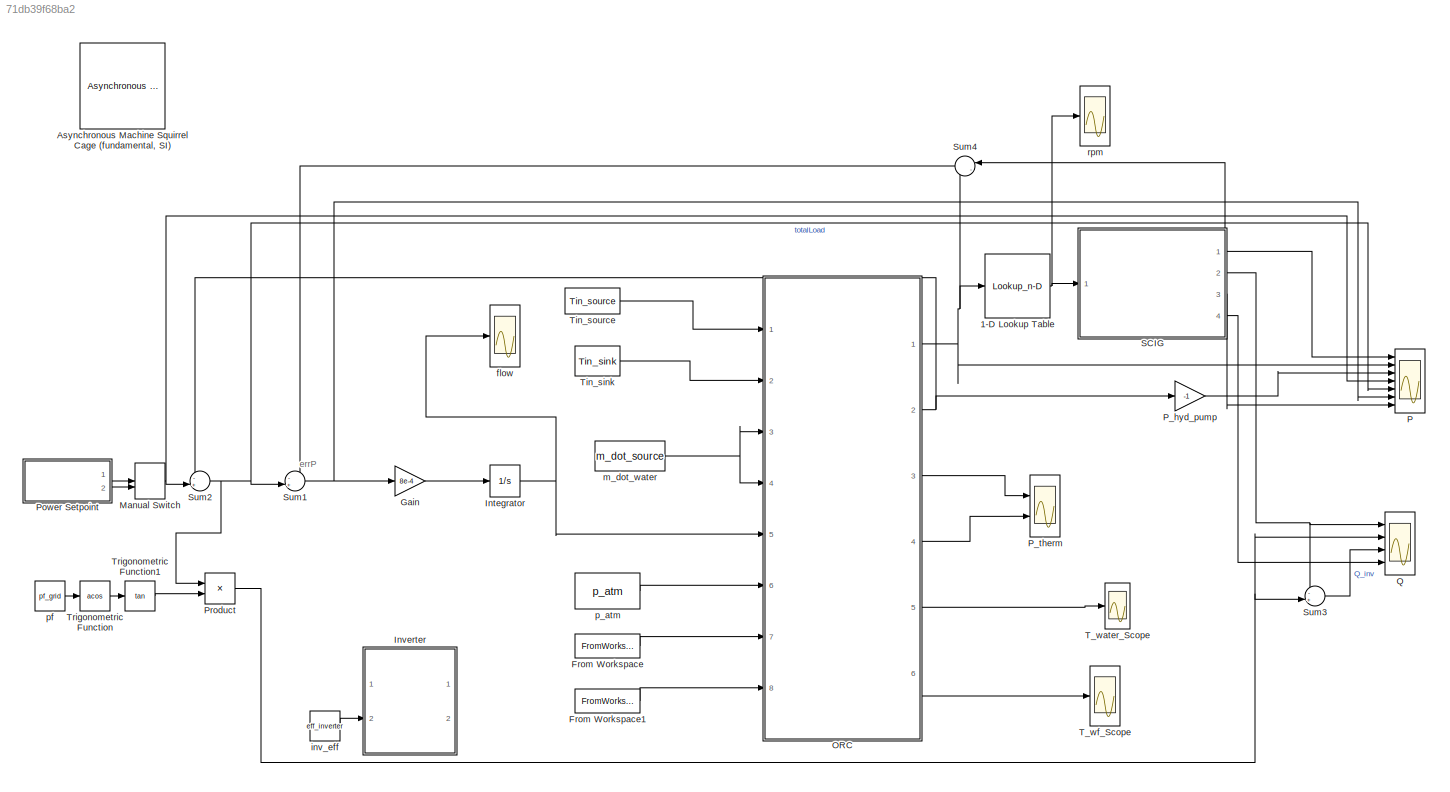
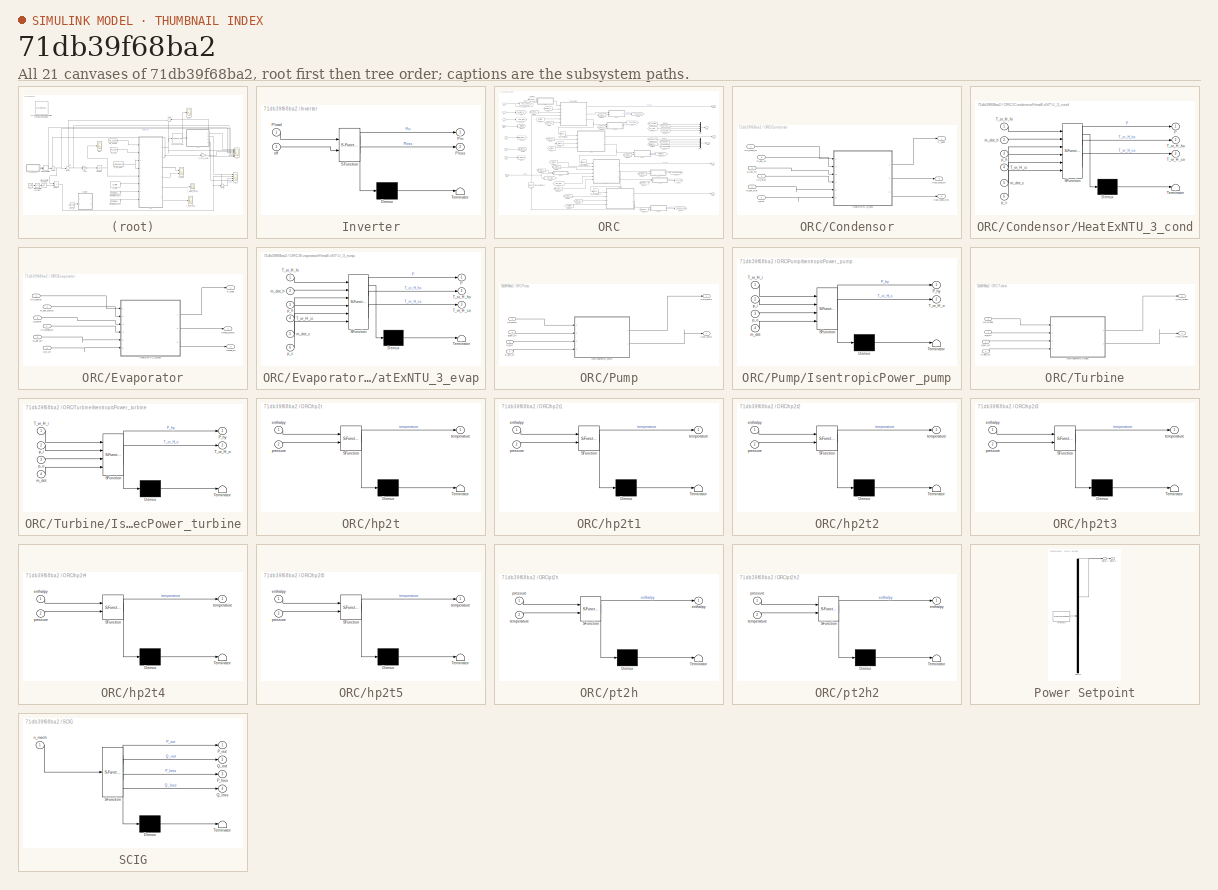
[diagram: thumbnail index - all 21 canvases of the model, root first then tree order]
MODEL slx_71db39f68ba2
KIND model
CONFIG AbsTol = auto
CONFIG EnableMultiTasking = off
CONFIG FixedStep = .1
CONFIG MaxStep = auto
CONFIG MinStep = auto
CONFIG RelTol = 1e-4
CONFIG SampleTimeConstraint = Unconstrained
CONFIG Solver = FixedStepAuto
CONFIG SolverName = FixedStepAuto
CONFIG StartTime = 0.0
CONFIG StopTime = 9
BLOCK [Lookup_n-D] 1-D Lookup Table
  BeginIndexSearchUsingPreviousIndexResult = on
  BreakpointsForDimension1 = P_spd_power
  DiagnosticForOutOfRangeInput = Error
  ExtrapMethod = Clip
  InternalRulePriority = Speed
  NumberOfTableDimensions = 1
  Ports = [1, 1]
  RndMeth = Simplest
  Table = P_spd_speed
BLOCK [Reference] Asynchronous Machine Squirrel Cage (fundamental, SI)  REF=pe_lib/Machines/Asynchronous
Machine
(Squirrel Cage)/Asynchronous Machine
Squirrel Cage
(fundamental, SI)
  Commented = on
  Ports = [0, 0, 0, 0, 0, 2, 3]
  SourceBlock = pe_lib/Machines/Asynchronous\nMachine\n(Squirrel Cage)/Asynchronous Machine\nSquirrel Cage\n(fundamental, SI)
  SourceProductBaseCode = PS
  SourceProductName = Simscape Power Systems
  SourceType = Asynchronous Machine\nSquirrel Cage\n(fundamental, SI)
BLOCK [FromWorkspace] From Workspace
  SampleTime = 0
  VariableName = p_hi
  ZeroCross = on
BLOCK [FromWorkspace] From Workspace1
  SampleTime = 0
  VariableName = p_low
  ZeroCross = on
BLOCK [Gain] Gain
  Gain = 8e-4
  OutDataTypeStr = Inherit: Inherit via internal rule
  ParamDataTypeStr = Inherit: Inherit via internal rule
  SaturateOnIntegerOverflow = off
BLOCK [Integrator] Integrator
  InitialCondition = m_dot_wf_init
  LimitOutput = on
  LowerSaturationLimit = 0
  Ports = [1, 1]
  UpperSaturationLimit = m_dot_wf_max
BLOCK [SubSystem] Inverter
  Commented = on
  ErrorFcn = Stateflow.Translate.translate
  PermitHierarchicalResolution = ExplicitOnly
  Ports = [2, 2]
  RequestExecContextInheritance = off
  SFBlockType = MATLAB Function
  TreatAsAtomicUnit = on
BLOCK [Demux] Inverter/ Demux 
  Outputs = 1
  Ports = [1, 1]
BLOCK [S-Function] Inverter/ SFunction 
  EnableBusSupport = on
  FunctionName = sf_sfun
  PortCounts = [2 3]
  Ports = [2, 3]
  SFcnIsStateOwnerBlock = off
  SFunctionDeploymentMode = off
  Tag = Stateflow S-Function ORC_test_simu_feedback 14
BLOCK [Terminator] Inverter/ Terminator 
BLOCK [Outport] Inverter/Pin
  IconDisplay = Port number
BLOCK [Inport] Inverter/Pload
  IconDisplay = Port number
BLOCK [Outport] Inverter/Ploss
  IconDisplay = Port number
  Port = 2
BLOCK [Inport] Inverter/eff
  IconDisplay = Port number
  Port = 2
BLOCK [ManualSwitch] Manual Switch
  CurrentSetting = 0
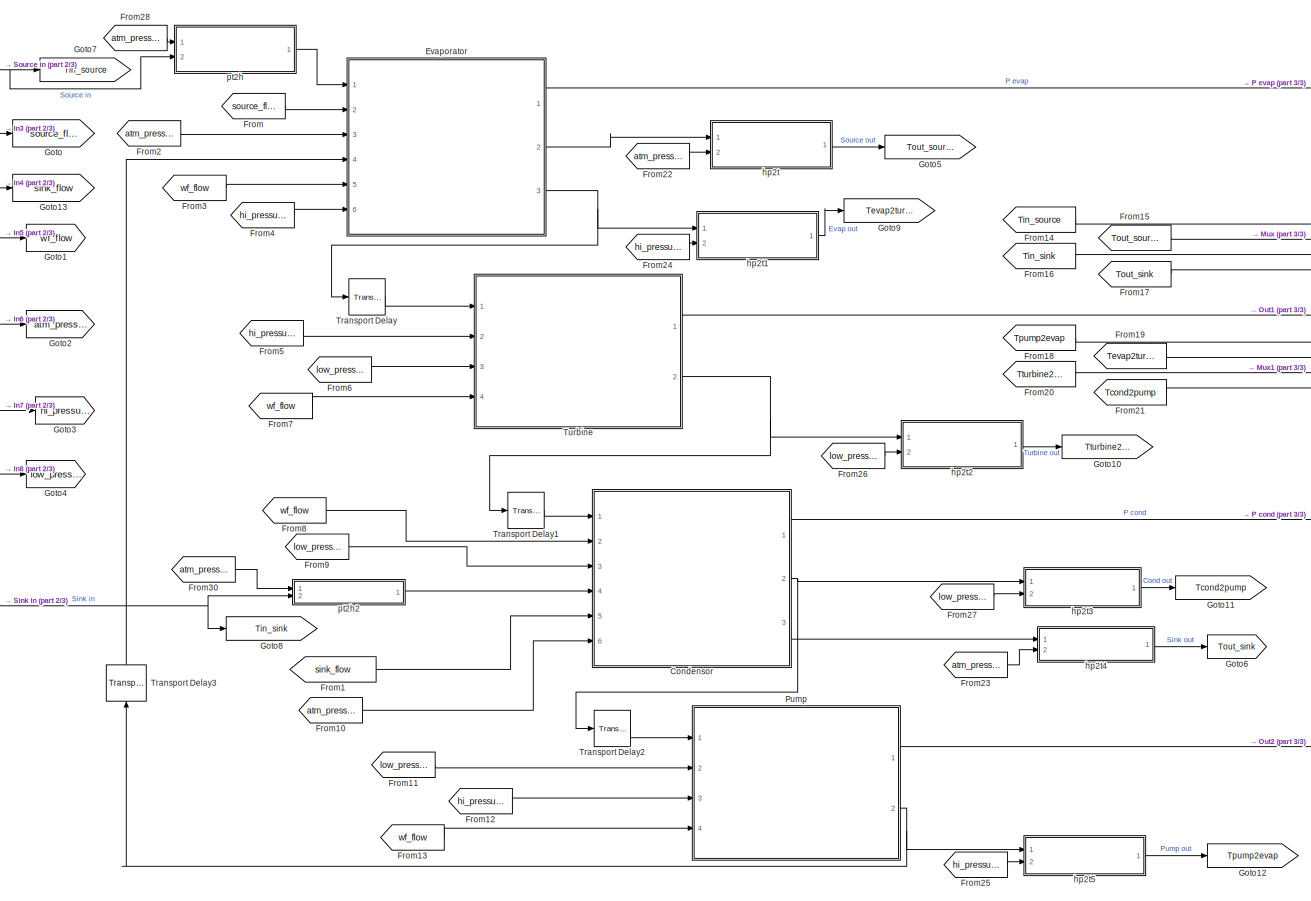
[diagram: ORC - part 1/3, most of the canvas]
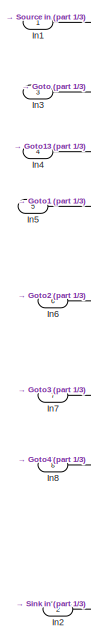
[diagram: ORC - part 2/3, middle left region]
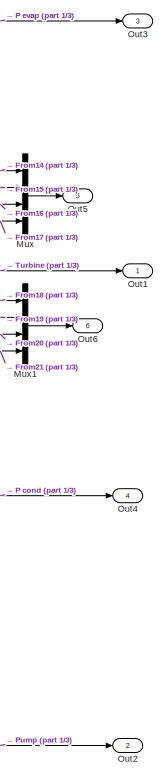
[diagram: ORC - part 3/3, right side, full height]
BLOCK [SubSystem] ORC
  Ports = [8, 6]
  RequestExecContextInheritance = off
BLOCK [SubSystem] ORC/Condensor
  Ports = [6, 3]
  RequestExecContextInheritance = off
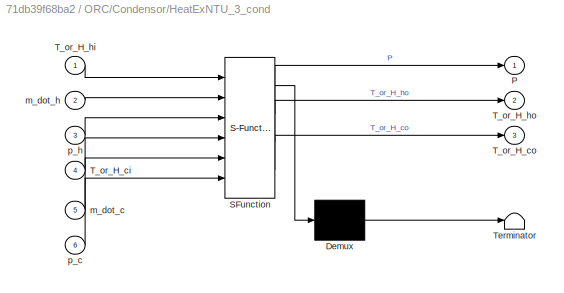
BLOCK [SubSystem] ORC/Condensor/HeatExNTU_3_cond
  Description = %HeatExNTU Summary \n%   This function calculates flow and outlet temperatures of a heat exchanger\n%   using the Number of Transfer Units (NTU) method as described in\n%   Fundementals of Heat and Mass Transfer by F. P. Incropera, D. P.\n%   DeWitt, T. L. Bergman & A. S. Lavine. The method can be used when only\n%   the inlet tempertures are known as opposed to inlet and outlet\n%   temperatures.\n%\n%  ...<+3098ch>
  ErrorFcn = Stateflow.Translate.translate
  PermitHierarchicalResolution = ExplicitOnly
  Ports = [6, 3]
  RequestExecContextInheritance = off
  SFBlockType = MATLAB Function
  TreatAsAtomicUnit = on
BLOCK [Demux] ORC/Condensor/HeatExNTU_3_cond/ Demux 
  Outputs = 1
  Ports = [1, 1]
BLOCK [S-Function] ORC/Condensor/HeatExNTU_3_cond/ SFunction 
  EnableBusSupport = on
  FunctionName = sf_sfun
  Parameters = A,HeatExType,T_or_H,U,fluid_c,fluid_h
  PortCounts = [6 4]
  Ports = [6, 4]
  SFcnIsStateOwnerBlock = off
  SFunctionDeploymentMode = off
  Tag = Stateflow S-Function ORC_test_simu_feedback 3
BLOCK [Terminator] ORC/Condensor/HeatExNTU_3_cond/ Terminator 
BLOCK [Outport] ORC/Condensor/HeatExNTU_3_cond/P
  IconDisplay = Port number
BLOCK [Inport] ORC/Condensor/HeatExNTU_3_cond/T_or_H_ci
  IconDisplay = Port number
  Port = 4
BLOCK [Outport] ORC/Condensor/HeatExNTU_3_cond/T_or_H_co
  IconDisplay = Port number
  Port = 3
BLOCK [Inport] ORC/Condensor/HeatExNTU_3_cond/T_or_H_hi
  IconDisplay = Port number
BLOCK [Outport] ORC/Condensor/HeatExNTU_3_cond/T_or_H_ho
  IconDisplay = Port number
  Port = 2
BLOCK [Inport] ORC/Condensor/HeatExNTU_3_cond/m_dot_c
  IconDisplay = Port number
  Port = 5
BLOCK [Inport] ORC/Condensor/HeatExNTU_3_cond/m_dot_h
  IconDisplay = Port number
  Port = 2
BLOCK [Inport] ORC/Condensor/HeatExNTU_3_cond/p_c
  IconDisplay = Port number
  Port = 6
BLOCK [Inport] ORC/Condensor/HeatExNTU_3_cond/p_h
  IconDisplay = Port number
  Port = 3
BLOCK [Inport] ORC/Condensor/Hin_cond_wf
  IconDisplay = Port number
BLOCK [Inport] ORC/Condensor/Hin_sink
  IconDisplay = Port number
  Port = 4
BLOCK [Outport] ORC/Condensor/Hout_cond_sink
  IconDisplay = Port number
  Port = 3
BLOCK [Outport] ORC/Condensor/Hout_cond_wf
  IconDisplay = Port number
  Port = 2
BLOCK [Outport] ORC/Condensor/P_cond
  IconDisplay = Port number
BLOCK [Inport] ORC/Condensor/m_dot_sink
  IconDisplay = Port number
  Port = 5
BLOCK [Inport] ORC/Condensor/m_dot_wf
  IconDisplay = Port number
  Port = 2
BLOCK [Inport] ORC/Condensor/p_low_wf
  IconDisplay = Port number
  Port = 3
BLOCK [Inport] ORC/Condensor/p_sink
  IconDisplay = Port number
  Port = 6
BLOCK [SubSystem] ORC/Evaporator
  Ports = [6, 3]
  RequestExecContextInheritance = off
BLOCK [SubSystem] ORC/Evaporator/HeatExNTU_3_evap
  Description = %HeatExNTU Summary \n%   This function calculates flow and outlet temperatures of a heat exchanger\n%   using the Number of Transfer Units (NTU) method as described in\n%   Fundementals of Heat and Mass Transfer by F. P. Incropera, D. P.\n%   DeWitt, T. L. Bergman & A. S. Lavine. The method can be used when only\n%   the inlet tempertures are known as opposed to inlet and outlet\n%   temperatures.\n%\n%  ...<+3098ch>
  ErrorFcn = Stateflow.Translate.translate
  PermitHierarchicalResolution = ExplicitOnly
  Ports = [6, 3]
  RequestExecContextInheritance = off
  SFBlockType = MATLAB Function
  TreatAsAtomicUnit = on
BLOCK [Demux] ORC/Evaporator/HeatExNTU_3_evap/ Demux 
  Outputs = 1
  Ports = [1, 1]
BLOCK [S-Function] ORC/Evaporator/HeatExNTU_3_evap/ SFunction 
  EnableBusSupport = on
  FunctionName = sf_sfun
  Parameters = A,HeatExType,T_or_H,U,fluid_c,fluid_h
  PortCounts = [6 4]
  Ports = [6, 4]
  SFcnIsStateOwnerBlock = off
  SFunctionDeploymentMode = off
  Tag = Stateflow S-Function ORC_test_simu_feedback 2
BLOCK [Terminator] ORC/Evaporator/HeatExNTU_3_evap/ Terminator 
BLOCK [Outport] ORC/Evaporator/HeatExNTU_3_evap/P
  IconDisplay = Port number
BLOCK [Inport] ORC/Evaporator/HeatExNTU_3_evap/T_or_H_ci
  IconDisplay = Port number
  Port = 4
BLOCK [Outport] ORC/Evaporator/HeatExNTU_3_evap/T_or_H_co
  IconDisplay = Port number
  Port = 3
BLOCK [Inport] ORC/Evaporator/HeatExNTU_3_evap/T_or_H_hi
  IconDisplay = Port number
BLOCK [Outport] ORC/Evaporator/HeatExNTU_3_evap/T_or_H_ho
  IconDisplay = Port number
  Port = 2
BLOCK [Inport] ORC/Evaporator/HeatExNTU_3_evap/m_dot_c
  IconDisplay = Port number
  Port = 5
BLOCK [Inport] ORC/Evaporator/HeatExNTU_3_evap/m_dot_h
  IconDisplay = Port number
  Port = 2
BLOCK [Inport] ORC/Evaporator/HeatExNTU_3_evap/p_c
  IconDisplay = Port number
  Port = 6
BLOCK [Inport] ORC/Evaporator/HeatExNTU_3_evap/p_h
  IconDisplay = Port number
  Port = 3
BLOCK [Outport] ORC/Evaporator/Hevap_source
  IconDisplay = Port number
  Port = 2
BLOCK [Outport] ORC/Evaporator/Hevap_wf
  IconDisplay = Port number
  Port = 3
BLOCK [Inport] ORC/Evaporator/Hin_evap_wf
  IconDisplay = Port number
  Port = 4
BLOCK [Inport] ORC/Evaporator/Hin_source
  IconDisplay = Port number
BLOCK [Outport] ORC/Evaporator/P_evap
  IconDisplay = Port number
BLOCK [Inport] ORC/Evaporator/m_dot_source
  IconDisplay = Port number
  Port = 2
BLOCK [Inport] ORC/Evaporator/m_dot_wf
  IconDisplay = Port number
  Port = 5
BLOCK [Inport] ORC/Evaporator/p_hi_wf
  IconDisplay = Port number
  Port = 6
BLOCK [Inport] ORC/Evaporator/p_source
  IconDisplay = Port number
  Port = 3
BLOCK [From] ORC/From
  GotoTag = source_flow
BLOCK [From] ORC/From1
  GotoTag = sink_flow
BLOCK [From] ORC/From10
  GotoTag = atm_pressure
BLOCK [From] ORC/From11
  GotoTag = low_pressure
BLOCK [From] ORC/From12
  GotoTag = hi_pressure
BLOCK [From] ORC/From13
  GotoTag = wf_flow
BLOCK [From] ORC/From14
  GotoTag = Tin_source
BLOCK [From] ORC/From15
  GotoTag = Tout_source
BLOCK [From] ORC/From16
  GotoTag = Tin_sink
BLOCK [From] ORC/From17
  GotoTag = Tout_sink
BLOCK [From] ORC/From18
  GotoTag = Tpump2evap
BLOCK [From] ORC/From19
  GotoTag = Tevap2turbine
BLOCK [From] ORC/From2
  GotoTag = atm_pressure
BLOCK [From] ORC/From20
  GotoTag = Tturbine2cond
BLOCK [From] ORC/From21
  GotoTag = Tcond2pump
BLOCK [From] ORC/From22
  GotoTag = atm_pressure
BLOCK [From] ORC/From23
  GotoTag = atm_pressure
BLOCK [From] ORC/From24
  GotoTag = hi_pressure
BLOCK [From] ORC/From25
  GotoTag = hi_pressure
BLOCK [From] ORC/From26
  GotoTag = low_pressure
BLOCK [From] ORC/From27
  GotoTag = low_pressure
BLOCK [From] ORC/From28
  GotoTag = atm_pressure
BLOCK [From] ORC/From3
  GotoTag = wf_flow
BLOCK [From] ORC/From30
  GotoTag = atm_pressure
BLOCK [From] ORC/From4
  GotoTag = hi_pressure
BLOCK [From] ORC/From5
  GotoTag = hi_pressure
BLOCK [From] ORC/From6
  GotoTag = low_pressure
BLOCK [From] ORC/From7
  GotoTag = wf_flow
BLOCK [From] ORC/From8
  GotoTag = wf_flow
BLOCK [From] ORC/From9
  GotoTag = low_pressure
BLOCK [Goto] ORC/Goto
  GotoTag = source_flow
BLOCK [Goto] ORC/Goto1
  GotoTag = wf_flow
BLOCK [Goto] ORC/Goto10
  GotoTag = Tturbine2cond
BLOCK [Goto] ORC/Goto11
  GotoTag = Tcond2pump
BLOCK [Goto] ORC/Goto12
  GotoTag = Tpump2evap
BLOCK [Goto] ORC/Goto13
  GotoTag = sink_flow
BLOCK [Goto] ORC/Goto2
  GotoTag = atm_pressure
BLOCK [Goto] ORC/Goto3
  GotoTag = hi_pressure
BLOCK [Goto] ORC/Goto4
  GotoTag = low_pressure
BLOCK [Goto] ORC/Goto5
  GotoTag = Tout_source
BLOCK [Goto] ORC/Goto6
  GotoTag = Tout_sink
BLOCK [Goto] ORC/Goto7
  GotoTag = Tin_source
BLOCK [Goto] ORC/Goto8
  GotoTag = Tin_sink
BLOCK [Goto] ORC/Goto9
  GotoTag = Tevap2turbine
BLOCK [Inport] ORC/In1
  IconDisplay = Port number
BLOCK [Inport] ORC/In2
  IconDisplay = Port number
  Port = 2
BLOCK [Inport] ORC/In3
  IconDisplay = Port number
  Port = 3
BLOCK [Inport] ORC/In4
  IconDisplay = Port number
  Port = 4
BLOCK [Inport] ORC/In5
  IconDisplay = Port number
  Port = 5
BLOCK [Inport] ORC/In6
  IconDisplay = Port number
  Port = 6
BLOCK [Inport] ORC/In7
  IconDisplay = Port number
  Port = 7
BLOCK [Inport] ORC/In8
  IconDisplay = Port number
  Port = 8
BLOCK [Mux] ORC/Mux
  DisplayOption = bar
  Ports = [4, 1]
BLOCK [Mux] ORC/Mux1
  DisplayOption = bar
  Ports = [4, 1]
BLOCK [Outport] ORC/Out1
  IconDisplay = Port number
BLOCK [Outport] ORC/Out2
  IconDisplay = Port number
  Port = 2
BLOCK [Outport] ORC/Out3
  IconDisplay = Port number
  Port = 3
BLOCK [Outport] ORC/Out4
  IconDisplay = Port number
  Port = 4
BLOCK [Outport] ORC/Out5
  IconDisplay = Port number
  Port = 5
BLOCK [Outport] ORC/Out6
  IconDisplay = Port number
  Port = 6
BLOCK [SubSystem] ORC/Pump
  Ports = [4, 2]
  RequestExecContextInheritance = off
BLOCK [Inport] ORC/Pump/Hin_pump
  IconDisplay = Port number
BLOCK [Outport] ORC/Pump/Hout_pump
  IconDisplay = Port number
  Port = 2
BLOCK [SubSystem] ORC/Pump/IsentropicPower_pump
  ErrorFcn = Stateflow.Translate.translate
  PermitHierarchicalResolution = ExplicitOnly
  Ports = [4, 2]
  RequestExecContextInheritance = off
  SFBlockType = MATLAB Function
  TreatAsAtomicUnit = on
BLOCK [Demux] ORC/Pump/IsentropicPower_pump/ Demux 
  Outputs = 1
  Ports = [1, 1]
BLOCK [S-Function] ORC/Pump/IsentropicPower_pump/ SFunction 
  EnableBusSupport = on
  FunctionName = sf_sfun
  Parameters = T_or_H,fluid,isen_eff
  PortCounts = [4 3]
  Ports = [4, 3]
  SFcnIsStateOwnerBlock = off
  SFunctionDeploymentMode = off
  Tag = Stateflow S-Function ORC_test_simu_feedback 4
BLOCK [Terminator] ORC/Pump/IsentropicPower_pump/ Terminator 
BLOCK [Outport] ORC/Pump/IsentropicPower_pump/P_hy
  IconDisplay = Port number
BLOCK [Inport] ORC/Pump/IsentropicPower_pump/T_or_H_i
  IconDisplay = Port number
BLOCK [Outport] ORC/Pump/IsentropicPower_pump/T_or_H_o
  IconDisplay = Port number
  Port = 2
BLOCK [Inport] ORC/Pump/IsentropicPower_pump/m_dot
  IconDisplay = Port number
  Port = 4
BLOCK [Inport] ORC/Pump/IsentropicPower_pump/p_i
  IconDisplay = Port number
  Port = 2
BLOCK [Inport] ORC/Pump/IsentropicPower_pump/p_o
  IconDisplay = Port number
  Port = 3
BLOCK [Outport] ORC/Pump/P_hyd_pump
  IconDisplay = Port number
BLOCK [Inport] ORC/Pump/m_dot_wf
  IconDisplay = Port number
  Port = 4
BLOCK [Inport] ORC/Pump/p_hi_wf
  IconDisplay = Port number
  Port = 3
BLOCK [Inport] ORC/Pump/pi_low_wf
  IconDisplay = Port number
  Port = 2
BLOCK [TransportDelay] ORC/Transport Delay
  Commented = through
  DelayTime = .01
  InitialOutput = 2.3e+05
  Ports = [1, 1]
BLOCK [TransportDelay] ORC/Transport Delay1
  Commented = through
  DelayTime = .01
  InitialOutput = 2.3e+05
  Ports = [1, 1]
BLOCK [TransportDelay] ORC/Transport Delay2
  Commented = through
  DelayTime = .01
  InitialOutput = 2.3e+05
  Ports = [1, 1]
BLOCK [TransportDelay] ORC/Transport Delay3
  DelayTime = .01
  InitialOutput = H_wf_init
  Ports = [1, 1]
  TransDelayFeedthrough = on
BLOCK [SubSystem] ORC/Turbine
  Ports = [4, 2]
  RequestExecContextInheritance = off
BLOCK [Inport] ORC/Turbine/Hin_turbine
  IconDisplay = Port number
BLOCK [Outport] ORC/Turbine/Hout_turbine
  IconDisplay = Port number
  Port = 2
BLOCK [SubSystem] ORC/Turbine/IsentropicPower_turbine
  ErrorFcn = Stateflow.Translate.translate
  PermitHierarchicalResolution = ExplicitOnly
  Ports = [4, 2]
  RequestExecContextInheritance = off
  SFBlockType = MATLAB Function
  TreatAsAtomicUnit = on
BLOCK [Demux] ORC/Turbine/IsentropicPower_turbine/ Demux 
  Outputs = 1
  Ports = [1, 1]
BLOCK [S-Function] ORC/Turbine/IsentropicPower_turbine/ SFunction 
  EnableBusSupport = on
  FunctionName = sf_sfun
  Parameters = T_or_H,fluid,isen_eff
  PortCounts = [4 3]
  Ports = [4, 3]
  SFcnIsStateOwnerBlock = off
  SFunctionDeploymentMode = off
  Tag = Stateflow S-Function ORC_test_simu_feedback 1
BLOCK [Terminator] ORC/Turbine/IsentropicPower_turbine/ Terminator 
BLOCK [Outport] ORC/Turbine/IsentropicPower_turbine/P_hy
  IconDisplay = Port number
BLOCK [Inport] ORC/Turbine/IsentropicPower_turbine/T_or_H_i
  IconDisplay = Port number
BLOCK [Outport] ORC/Turbine/IsentropicPower_turbine/T_or_H_o
  IconDisplay = Port number
  Port = 2
BLOCK [Inport] ORC/Turbine/IsentropicPower_turbine/m_dot
  IconDisplay = Port number
  Port = 4
BLOCK [Inport] ORC/Turbine/IsentropicPower_turbine/p_i
  IconDisplay = Port number
  Port = 2
BLOCK [Inport] ORC/Turbine/IsentropicPower_turbine/p_o
  IconDisplay = Port number
  Port = 3
BLOCK [Outport] ORC/Turbine/P_hyd_turbine
  IconDisplay = Port number
BLOCK [Inport] ORC/Turbine/m_dot_wf
  IconDisplay = Port number
  Port = 4
BLOCK [Inport] ORC/Turbine/p_low_wf
  IconDisplay = Port number
  Port = 3
BLOCK [Inport] ORC/Turbine/pi_hi_wf
  IconDisplay = Port number
  Port = 2
BLOCK [SubSystem] ORC/hp2t
  ErrorFcn = Stateflow.Translate.translate
  PermitHierarchicalResolution = ExplicitOnly
  Ports = [2, 1]
  RequestExecContextInheritance = off
  SFBlockType = MATLAB Function
  TreatAsAtomicUnit = on
BLOCK [Demux] ORC/hp2t/ Demux 
  Outputs = 1
  Ports = [1, 1]
BLOCK [S-Function] ORC/hp2t/ SFunction 
  EnableBusSupport = on
  FunctionName = sf_sfun
  Parameters = fluid_handle
  PortCounts = [2 2]
  Ports = [2, 2]
  SFcnIsStateOwnerBlock = off
  SFunctionDeploymentMode = off
  Tag = Stateflow S-Function ORC_test_simu_feedback 5
BLOCK [Terminator] ORC/hp2t/ Terminator 
BLOCK [Inport] ORC/hp2t/enthalpy
  IconDisplay = Port number
BLOCK [Inport] ORC/hp2t/pressure
  IconDisplay = Port number
  Port = 2
BLOCK [Outport] ORC/hp2t/temperature
  IconDisplay = Port number
BLOCK [SubSystem] ORC/hp2t1
  ErrorFcn = Stateflow.Translate.translate
  PermitHierarchicalResolution = ExplicitOnly
  Ports = [2, 1]
  RequestExecContextInheritance = off
  SFBlockType = MATLAB Function
  TreatAsAtomicUnit = on
BLOCK [Demux] ORC/hp2t1/ Demux 
  Outputs = 1
  Ports = [1, 1]
BLOCK [S-Function] ORC/hp2t1/ SFunction 
  EnableBusSupport = on
  FunctionName = sf_sfun
  Parameters = fluid_handle
  PortCounts = [2 2]
  Ports = [2, 2]
  SFcnIsStateOwnerBlock = off
  SFunctionDeploymentMode = off
  Tag = Stateflow S-Function ORC_test_simu_feedback 6
BLOCK [Terminator] ORC/hp2t1/ Terminator 
BLOCK [Inport] ORC/hp2t1/enthalpy
  IconDisplay = Port number
BLOCK [Inport] ORC/hp2t1/pressure
  IconDisplay = Port number
  Port = 2
BLOCK [Outport] ORC/hp2t1/temperature
  IconDisplay = Port number
BLOCK [SubSystem] ORC/hp2t2
  ErrorFcn = Stateflow.Translate.translate
  PermitHierarchicalResolution = ExplicitOnly
  Ports = [2, 1]
  RequestExecContextInheritance = off
  SFBlockType = MATLAB Function
  TreatAsAtomicUnit = on
BLOCK [Demux] ORC/hp2t2/ Demux 
  Outputs = 1
  Ports = [1, 1]
BLOCK [S-Function] ORC/hp2t2/ SFunction 
  EnableBusSupport = on
  FunctionName = sf_sfun
  Parameters = fluid_handle
  PortCounts = [2 2]
  Ports = [2, 2]
  SFcnIsStateOwnerBlock = off
  SFunctionDeploymentMode = off
  Tag = Stateflow S-Function ORC_test_simu_feedback 7
BLOCK [Terminator] ORC/hp2t2/ Terminator 
BLOCK [Inport] ORC/hp2t2/enthalpy
  IconDisplay = Port number
BLOCK [Inport] ORC/hp2t2/pressure
  IconDisplay = Port number
  Port = 2
BLOCK [Outport] ORC/hp2t2/temperature
  IconDisplay = Port number
BLOCK [SubSystem] ORC/hp2t3
  ErrorFcn = Stateflow.Translate.translate
  PermitHierarchicalResolution = ExplicitOnly
  Ports = [2, 1]
  RequestExecContextInheritance = off
  SFBlockType = MATLAB Function
  TreatAsAtomicUnit = on
BLOCK [Demux] ORC/hp2t3/ Demux 
  Outputs = 1
  Ports = [1, 1]
BLOCK [S-Function] ORC/hp2t3/ SFunction 
  EnableBusSupport = on
  FunctionName = sf_sfun
  Parameters = fluid_handle
  PortCounts = [2 2]
  Ports = [2, 2]
  SFcnIsStateOwnerBlock = off
  SFunctionDeploymentMode = off
  Tag = Stateflow S-Function ORC_test_simu_feedback 8
BLOCK [Terminator] ORC/hp2t3/ Terminator 
BLOCK [Inport] ORC/hp2t3/enthalpy
  IconDisplay = Port number
BLOCK [Inport] ORC/hp2t3/pressure
  IconDisplay = Port number
  Port = 2
BLOCK [Outport] ORC/hp2t3/temperature
  IconDisplay = Port number
BLOCK [SubSystem] ORC/hp2t4
  ErrorFcn = Stateflow.Translate.translate
  PermitHierarchicalResolution = ExplicitOnly
  Ports = [2, 1]
  RequestExecContextInheritance = off
  SFBlockType = MATLAB Function
  TreatAsAtomicUnit = on
BLOCK [Demux] ORC/hp2t4/ Demux 
  Outputs = 1
  Ports = [1, 1]
BLOCK [S-Function] ORC/hp2t4/ SFunction 
  EnableBusSupport = on
  FunctionName = sf_sfun
  Parameters = fluid_handle
  PortCounts = [2 2]
  Ports = [2, 2]
  SFcnIsStateOwnerBlock = off
  SFunctionDeploymentMode = off
  Tag = Stateflow S-Function ORC_test_simu_feedback 9
BLOCK [Terminator] ORC/hp2t4/ Terminator 
BLOCK [Inport] ORC/hp2t4/enthalpy
  IconDisplay = Port number
BLOCK [Inport] ORC/hp2t4/pressure
  IconDisplay = Port number
  Port = 2
BLOCK [Outport] ORC/hp2t4/temperature
  IconDisplay = Port number
BLOCK [SubSystem] ORC/hp2t5
  ErrorFcn = Stateflow.Translate.translate
  PermitHierarchicalResolution = ExplicitOnly
  Ports = [2, 1]
  RequestExecContextInheritance = off
  SFBlockType = MATLAB Function
  TreatAsAtomicUnit = on
BLOCK [Demux] ORC/hp2t5/ Demux 
  Outputs = 1
  Ports = [1, 1]
BLOCK [S-Function] ORC/hp2t5/ SFunction 
  EnableBusSupport = on
  FunctionName = sf_sfun
  Parameters = fluid_handle
  PortCounts = [2 2]
  Ports = [2, 2]
  SFcnIsStateOwnerBlock = off
  SFunctionDeploymentMode = off
  Tag = Stateflow S-Function ORC_test_simu_feedback 10
BLOCK [Terminator] ORC/hp2t5/ Terminator 
BLOCK [Inport] ORC/hp2t5/enthalpy
  IconDisplay = Port number
BLOCK [Inport] ORC/hp2t5/pressure
  IconDisplay = Port number
  Port = 2
BLOCK [Outport] ORC/hp2t5/temperature
  IconDisplay = Port number
BLOCK [SubSystem] ORC/pt2h
  ErrorFcn = Stateflow.Translate.translate
  PermitHierarchicalResolution = ExplicitOnly
  Ports = [2, 1]
  RequestExecContextInheritance = off
  SFBlockType = MATLAB Function
  TreatAsAtomicUnit = on
BLOCK [Demux] ORC/pt2h/ Demux 
  Outputs = 1
  Ports = [1, 1]
BLOCK [S-Function] ORC/pt2h/ SFunction 
  EnableBusSupport = on
  FunctionName = sf_sfun
  Parameters = fluid_handle
  PortCounts = [2 2]
  Ports = [2, 2]
  SFcnIsStateOwnerBlock = off
  SFunctionDeploymentMode = off
  Tag = Stateflow S-Function ORC_test_simu_feedback 11
BLOCK [Terminator] ORC/pt2h/ Terminator 
BLOCK [Outport] ORC/pt2h/enthalpy
  IconDisplay = Port number
BLOCK [Inport] ORC/pt2h/pressure
  IconDisplay = Port number
BLOCK [Inport] ORC/pt2h/temperature
  IconDisplay = Port number
  Port = 2
BLOCK [SubSystem] ORC/pt2h2
  ErrorFcn = Stateflow.Translate.translate
  PermitHierarchicalResolution = ExplicitOnly
  Ports = [2, 1]
  RequestExecContextInheritance = off
  SFBlockType = MATLAB Function
  TreatAsAtomicUnit = on
BLOCK [Demux] ORC/pt2h2/ Demux 
  Outputs = 1
  Ports = [1, 1]
BLOCK [S-Function] ORC/pt2h2/ SFunction 
  EnableBusSupport = on
  FunctionName = sf_sfun
  Parameters = fluid_handle
  PortCounts = [2 2]
  Ports = [2, 2]
  SFcnIsStateOwnerBlock = off
  SFunctionDeploymentMode = off
  Tag = Stateflow S-Function ORC_test_simu_feedback 13
BLOCK [Terminator] ORC/pt2h2/ Terminator 
BLOCK [Outport] ORC/pt2h2/enthalpy
  IconDisplay = Port number
BLOCK [Inport] ORC/pt2h2/pressure
  IconDisplay = Port number
BLOCK [Inport] ORC/pt2h2/temperature
  IconDisplay = Port number
  Port = 2
BLOCK [Scope] P
  Floating = off
  NumInputPorts = 7
  Ports = [7]
  ScopeSpecificationString = Simulink.scopes.TimeScopeBlockCfg('CurrentConfiguration', extmgr.ConfigurationSet(extmgr.Configuration('Core','General UI',true),extmgr.Configuration('Core','Source UI',true),extmgr.Configuration('Sources','WiredSimulink',true,'DataLoggingVariableName','ScopeData1'),extmgr.Configuration('Visuals','Time Domain',true,'SerializedDisplays',{struct('MinYLimReal','-25267.979','MaxYLimReal','62864.36068'...<+1953ch>
BLOCK [Gain] P_hyd_pump
  Gain = -1
  OutDataTypeStr = Inherit: Inherit via internal rule
  ParamDataTypeStr = Inherit: Inherit via internal rule
  SaturateOnIntegerOverflow = off
BLOCK [Scope] P_therm
  Floating = off
  NumInputPorts = 2
  Ports = [2]
  ScopeSpecificationString = Simulink.scopes.TimeScopeBlockCfg('CurrentConfiguration', extmgr.ConfigurationSet(extmgr.Configuration('Core','General UI',true),extmgr.Configuration('Core','Source UI',true),extmgr.Configuration('Sources','WiredSimulink',true),extmgr.Configuration('Visuals','Time Domain',true,'SerializedDisplays',{struct('MinYLimReal','87245.98272','MaxYLimReal','509091.14252','YLabelReal','','MinYLimMag','87245....<+1754ch>
BLOCK [SubSystem] Power Setpoint
  ClipboardFcn = sigbuilder_block('clipboard');
  CloseFcn = sigbuilder_block('close');
  ContinueFcn = sigbuilder_block('continue');
  CopyFcn = sigbuilder_block('copy');
  DeleteFcn = sigbuilder_block('delete');
  LoadFcn = sigbuilder_block('load',[440.25 156.75 544.5 355.5 ]);
  MaskHideContents = on
  ModelCloseFcn = sigbuilder_block('modelClose');
  NameChangeFcn = sigbuilder_block('namechange');
  OpenFcn = sigbuilder_block('open',[440.25 156.75 544.5 355.5 ]);
  PauseFcn = sigbuilder_block('pause');
  Ports = [0, 2]
  PreSaveFcn = sigbuilder_block('preSave');
  RequestExecContextInheritance = off
  StartFcn = sigbuilder_block('start');
  StopFcn = sigbuilder_block('stop');
  Tag = STV Subsys
BLOCK [Demux] Power Setpoint/Demux
  Outputs = 2
  Ports = [1, 2]
  Tag = STV Demux
BLOCK [FromWorkspace] Power Setpoint/FromWs
  SampleTime = 0
  Tag = STV FromWs
  VariableName = tuvar
  ZeroCross = on
BLOCK [Outport] Power Setpoint/Signal 1
  IconDisplay = Port number
  Tag = STV Outport
BLOCK [Outport] Power Setpoint/Signal 2
  IconDisplay = Port number
  Port = 2
  Tag = STV Outport
BLOCK [Product] Product
  InputSameDT = off
  OutDataTypeStr = Inherit: Inherit via internal rule
  Ports = [2, 1]
  RndMeth = Floor
  SaturateOnIntegerOverflow = off
BLOCK [Scope] Q
  Floating = off
  NumInputPorts = 4
  Ports = [4]
  ScopeSpecificationString = Simulink.scopes.TimeScopeBlockCfg('CurrentConfiguration', extmgr.ConfigurationSet(extmgr.Configuration('Core','General UI',true),extmgr.Configuration('Core','Source UI',true),extmgr.Configuration('Sources','WiredSimulink',true,'DataLoggingVariableName','ScopeData1'),extmgr.Configuration('Visuals','Time Domain',true,'SerializedDisplays',{struct('MinYLimReal','-15770.14715','MaxYLimReal','34420.4959...<+1863ch>
BLOCK [SubSystem] SCIG
  ErrorFcn = Stateflow.Translate.translate
  PermitHierarchicalResolution = ExplicitOnly
  Ports = [1, 4]
  RequestExecContextInheritance = off
  SFBlockType = MATLAB Function
  TreatAsAtomicUnit = on
BLOCK [Demux] SCIG/ Demux 
  Outputs = 1
  Ports = [1, 1]
BLOCK [S-Function] SCIG/ SFunction 
  EnableBusSupport = on
  FunctionName = sf_sfun
  Parameters = K_b,K_w,R1,R2,Rm,Rx,Vll,X1,X2,Xm,Xx,f_synch,poles
  PortCounts = [1 5]
  Ports = [1, 5]
  SFcnIsStateOwnerBlock = off
  SFunctionDeploymentMode = off
  Tag = Stateflow S-Function ORC_test_simu_feedback 12
BLOCK [Terminator] SCIG/ Terminator 
BLOCK [Outport] SCIG/P_loss
  IconDisplay = Port number
  Port = 3
BLOCK [Outport] SCIG/P_out
  IconDisplay = Port number
BLOCK [Outport] SCIG/Q_loss
  IconDisplay = Port number
  Port = 4
BLOCK [Outport] SCIG/Q_out
  IconDisplay = Port number
  Port = 2
BLOCK [Inport] SCIG/n_mech
  IconDisplay = Port number
BLOCK [Sum] Sum1
  IconShape = round
  InputSameDT = off
  Inputs = -+|
  OutDataTypeStr = Inherit: Inherit via internal rule
  Ports = [2, 1]
  SaturateOnIntegerOverflow = off
BLOCK [Sum] Sum2
  IconShape = round
  InputSameDT = off
  Inputs = -+|
  OutDataTypeStr = Inherit: Inherit via internal rule
  Ports = [2, 1]
  SaturateOnIntegerOverflow = off
BLOCK [Sum] Sum3
  IconShape = round
  InputSameDT = off
  Inputs = -+|
  OutDataTypeStr = Inherit: Inherit via internal rule
  Ports = [2, 1]
  SaturateOnIntegerOverflow = off
BLOCK [Sum] Sum4
  IconShape = round
  InputSameDT = off
  Inputs = |-+
  OutDataTypeStr = Inherit: Inherit via internal rule
  Ports = [2, 1]
  SaturateOnIntegerOverflow = off
BLOCK [Scope] T_water_Scope
  Floating = off
  NumInputPorts = 1
  Ports = [1]
  ScopeSpecificationString = Simulink.scopes.TimeScopeBlockCfg('CurrentConfiguration', extmgr.ConfigurationSet(extmgr.Configuration('Core','General UI',true),extmgr.Configuration('Core','Source UI',true),extmgr.Configuration('Sources','WiredSimulink',true,'DataLoggingVariableName','ScopeData1'),extmgr.Configuration('Visuals','Time Domain',true,'SerializedDisplays',{struct('MinYLimReal','266.75','MaxYLimReal','379.25','YLabelR...<+1792ch>
BLOCK [Scope] T_wf_Scope
  Floating = off
  NumInputPorts = 1
  Ports = [1]
  ScopeSpecificationString = Simulink.scopes.TimeScopeBlockCfg('CurrentConfiguration', extmgr.ConfigurationSet(extmgr.Configuration('Core','General UI',true),extmgr.Configuration('Core','Source UI',true),extmgr.Configuration('Sources','WiredSimulink',true,'DataLoggingVariableName','ScopeData2'),extmgr.Configuration('Visuals','Time Domain',true,'SerializedDisplays',{struct('MinYLimReal','270.23202','MaxYLimReal','373.19541','Y...<+1817ch>
BLOCK [Constant] Tin_sink
  Value = Tin_sink
BLOCK [Constant] Tin_source
  Value = Tin_source
BLOCK [Trigonometry] Trigonometric Function
  Operator = acos
  Ports = [1, 1]
BLOCK [Trigonometry] Trigonometric Function1
  Operator = tan
  Ports = [1, 1]
BLOCK [Scope] flow
  Floating = off
  NumInputPorts = 1
  Ports = [1]
  ScopeSpecificationString = Simulink.scopes.TimeScopeBlockCfg('CurrentConfiguration', extmgr.ConfigurationSet(extmgr.Configuration('Core','General UI',true),extmgr.Configuration('Core','Source UI',true),extmgr.Configuration('Sources','WiredSimulink',true,'DataLoggingVariableName','ScopeData1'),extmgr.Configuration('Visuals','Time Domain',true,'SerializedDisplays',{struct('MinYLimReal','-1.25','MaxYLimReal','11.25','YLabelRea...<+1766ch>
BLOCK [Constant] inv_eff
  Commented = on
  Value = eff_inverter
BLOCK [Constant] m_dot_water
  Value = m_dot_source
BLOCK [Constant] p_atm
  Value = p_atm
BLOCK [Constant] pf
  Value = pf_grid
BLOCK [Scope] rpm
  Floating = off
  NumInputPorts = 1
  Ports = [1]
  ScopeSpecificationString = Simulink.scopes.TimeScopeBlockCfg('CurrentConfiguration', extmgr.ConfigurationSet(extmgr.Configuration('Core','General UI',true),extmgr.Configuration('Core','Source UI',true),extmgr.Configuration('Sources','WiredSimulink',true,'DataLoggingVariableName','ScopeData1'),extmgr.Configuration('Visuals','Time Domain',true,'SerializedDisplays',{struct('MinYLimReal','1804.4326','MaxYLimReal','1810.94932','...<+1828ch>
ANNOTATION (root): errP
NET 1-D Lookup Table:1 -> SCIG:1, rpm:1
LINE From Workspace1:1 -> ORC:8
LINE From Workspace:1 -> ORC:7
LINE Gain:1 -> Integrator:1
NET Integrator:1 -> ORC:5, flow:1
NET Manual Switch:1 -> P:4, Sum2:2
LINE ORC/Condensor/HeatExNTU_3_cond:1 -> ORC/Condensor/P_cond:1
LINE ORC/Condensor/HeatExNTU_3_cond:2 -> ORC/Condensor/Hout_cond_wf:1
LINE ORC/Condensor/HeatExNTU_3_cond:3 -> ORC/Condensor/Hout_cond_sink:1
LINE ORC/Condensor/Hin_cond_wf:1 -> ORC/Condensor/HeatExNTU_3_cond:1
LINE ORC/Condensor/Hin_sink:1 -> ORC/Condensor/HeatExNTU_3_cond:4
LINE ORC/Condensor/m_dot_sink:1 -> ORC/Condensor/HeatExNTU_3_cond:5
LINE ORC/Condensor/m_dot_wf:1 -> ORC/Condensor/HeatExNTU_3_cond:2
LINE ORC/Condensor/p_low_wf:1 -> ORC/Condensor/HeatExNTU_3_cond:3
LINE ORC/Condensor/p_sink:1 -> ORC/Condensor/HeatExNTU_3_cond:6
LINE ORC/Condensor:1 -> ORC/Out4:1
NET ORC/Condensor:2 -> ORC/Transport Delay2:1, ORC/hp2t3:1
LINE ORC/Condensor:3 -> ORC/hp2t4:1
LINE ORC/Evaporator/HeatExNTU_3_evap:1 -> ORC/Evaporator/P_evap:1
LINE ORC/Evaporator/HeatExNTU_3_evap:2 -> ORC/Evaporator/Hevap_source:1
LINE ORC/Evaporator/HeatExNTU_3_evap:3 -> ORC/Evaporator/Hevap_wf:1
LINE ORC/Evaporator/Hin_evap_wf:1 -> ORC/Evaporator/HeatExNTU_3_evap:4
LINE ORC/Evaporator/Hin_source:1 -> ORC/Evaporator/HeatExNTU_3_evap:1
LINE ORC/Evaporator/m_dot_source:1 -> ORC/Evaporator/HeatExNTU_3_evap:2
LINE ORC/Evaporator/m_dot_wf:1 -> ORC/Evaporator/HeatExNTU_3_evap:5
LINE ORC/Evaporator/p_hi_wf:1 -> ORC/Evaporator/HeatExNTU_3_evap:6
LINE ORC/Evaporator/p_source:1 -> ORC/Evaporator/HeatExNTU_3_evap:3
LINE ORC/Evaporator:1 -> ORC/Out3:1
LINE ORC/Evaporator:2 -> ORC/hp2t:1
NET ORC/Evaporator:3 -> ORC/Transport Delay:1, ORC/hp2t1:1
LINE ORC/From10:1 -> ORC/Condensor:6
LINE ORC/From11:1 -> ORC/Pump:2
LINE ORC/From12:1 -> ORC/Pump:3
LINE ORC/From13:1 -> ORC/Pump:4
LINE ORC/From14:1 -> ORC/Mux:1
LINE ORC/From15:1 -> ORC/Mux:2
LINE ORC/From16:1 -> ORC/Mux:3
LINE ORC/From17:1 -> ORC/Mux:4
LINE ORC/From18:1 -> ORC/Mux1:1
LINE ORC/From19:1 -> ORC/Mux1:2
LINE ORC/From1:1 -> ORC/Condensor:5
LINE ORC/From20:1 -> ORC/Mux1:3
LINE ORC/From21:1 -> ORC/Mux1:4
LINE ORC/From22:1 -> ORC/hp2t:2
LINE ORC/From23:1 -> ORC/hp2t4:2
LINE ORC/From24:1 -> ORC/hp2t1:2
LINE ORC/From25:1 -> ORC/hp2t5:2
LINE ORC/From26:1 -> ORC/hp2t2:2
LINE ORC/From27:1 -> ORC/hp2t3:2
LINE ORC/From28:1 -> ORC/pt2h:1
LINE ORC/From2:1 -> ORC/Evaporator:3
LINE ORC/From30:1 -> ORC/pt2h2:1
LINE ORC/From3:1 -> ORC/Evaporator:5
LINE ORC/From4:1 -> ORC/Evaporator:6
LINE ORC/From5:1 -> ORC/Turbine:2
LINE ORC/From6:1 -> ORC/Turbine:3
LINE ORC/From7:1 -> ORC/Turbine:4
LINE ORC/From8:1 -> ORC/Condensor:2
LINE ORC/From9:1 -> ORC/Condensor:3
LINE ORC/From:1 -> ORC/Evaporator:2
NET ORC/In1:1 -> ORC/Goto7:1, ORC/pt2h:2
NET ORC/In2:1 -> ORC/Goto8:1, ORC/pt2h2:2
LINE ORC/In3:1 -> ORC/Goto:1
LINE ORC/In4:1 -> ORC/Goto13:1
LINE ORC/In5:1 -> ORC/Goto1:1
LINE ORC/In6:1 -> ORC/Goto2:1
LINE ORC/In7:1 -> ORC/Goto3:1
LINE ORC/In8:1 -> ORC/Goto4:1
LINE ORC/Mux1:1 -> ORC/Out6:1
LINE ORC/Mux:1 -> ORC/Out5:1
LINE ORC/Pump/Hin_pump:1 -> ORC/Pump/IsentropicPower_pump:1
LINE ORC/Pump/IsentropicPower_pump:1 -> ORC/Pump/P_hyd_pump:1
LINE ORC/Pump/IsentropicPower_pump:2 -> ORC/Pump/Hout_pump:1
LINE ORC/Pump/m_dot_wf:1 -> ORC/Pump/IsentropicPower_pump:4
LINE ORC/Pump/p_hi_wf:1 -> ORC/Pump/IsentropicPower_pump:3
LINE ORC/Pump/pi_low_wf:1 -> ORC/Pump/IsentropicPower_pump:2
LINE ORC/Pump:1 -> ORC/Out2:1
NET ORC/Pump:2 -> ORC/Transport Delay3:1, ORC/hp2t5:1
LINE ORC/Transport Delay1:1 -> ORC/Condensor:1
LINE ORC/Transport Delay2:1 -> ORC/Pump:1
LINE ORC/Transport Delay3:1 -> ORC/Evaporator:4
LINE ORC/Transport Delay:1 -> ORC/Turbine:1
LINE ORC/Turbine/Hin_turbine:1 -> ORC/Turbine/IsentropicPower_turbine:1
LINE ORC/Turbine/IsentropicPower_turbine:1 -> ORC/Turbine/P_hyd_turbine:1
LINE ORC/Turbine/IsentropicPower_turbine:2 -> ORC/Turbine/Hout_turbine:1
LINE ORC/Turbine/m_dot_wf:1 -> ORC/Turbine/IsentropicPower_turbine:4
LINE ORC/Turbine/p_low_wf:1 -> ORC/Turbine/IsentropicPower_turbine:3
LINE ORC/Turbine/pi_hi_wf:1 -> ORC/Turbine/IsentropicPower_turbine:2
LINE ORC/Turbine:1 -> ORC/Out1:1
NET ORC/Turbine:2 -> ORC/Transport Delay1:1, ORC/hp2t2:1
LINE ORC/hp2t1:1 -> ORC/Goto9:1
LINE ORC/hp2t2:1 -> ORC/Goto10:1
LINE ORC/hp2t3:1 -> ORC/Goto11:1
LINE ORC/hp2t4:1 -> ORC/Goto6:1
LINE ORC/hp2t5:1 -> ORC/Goto12:1
LINE ORC/hp2t:1 -> ORC/Goto5:1
LINE ORC/pt2h2:1 -> ORC/Condensor:4
LINE ORC/pt2h:1 -> ORC/Evaporator:1
NET ORC:1 -> 1-D Lookup Table:1, P:2, Sum4:2
NET ORC:2 -> P_hyd_pump:1, Sum2:1
LINE ORC:3 -> P_therm:1
LINE ORC:4 -> P_therm:2
LINE ORC:5 -> T_water_Scope:1
LINE ORC:6 -> T_wf_Scope:1
LINE P_hyd_pump:1 -> P:3
LINE Power Setpoint:1 -> Manual Switch:1
LINE Power Setpoint:2 -> Manual Switch:2
NET Product:1 -> Q:2, Sum3:2
LINE SCIG:1 -> P:1
NET SCIG:2 -> Q:1, Sum3:1
NET SCIG:3 -> P:7, Sum4:1
LINE SCIG:4 -> Q:4
NET Sum1:1 -> Gain:1, P:6
NET Sum2:1 -> P:5, Product:1, Sum1:2
LINE Sum3:1 -> Q:3
LINE Sum4:1 -> Sum1:1
LINE Tin_sink:1 -> ORC:2
LINE Tin_source:1 -> ORC:1
LINE Trigonometric Function1:1 -> Product:2
LINE Trigonometric Function:1 -> Trigonometric Function1:1
LINE inv_eff:1 -> Inverter:2
NET m_dot_water:1 -> ORC:3, ORC:4
LINE p_atm:1 -> ORC:6
LINE pf:1 -> Trigonometric Function:1
note: NET lines group one-source signal fan-out (src -> all destinations, sorted); 1:1 wires keep LINE
CHART ORC/Turbine/IsentropicPower_turbine states=1 transitions=1
  STATE_LABEL 'eML_blk_kernel()'
  STATE_LABEL 'SCRIPT:\nfunction [ P_hy, T_or_H_o ] = IsentropicPower_block( T_or_H_i, p_i, p_o, m_dot, T_or_H,  isen_eff, fluid)\n% function [ P_hy ] = IsentropicPower( T_i, T_o, p_i, p_o, m_dot, fluid, isen_eff )\n%EXPANDER Summary of this function\n%   This process calculates the mechanical power provided or required by a \n%   generic expander device/system. Turbines and other expanders provide\n%   mechanical pow...<+3608ch>'
CHART ORC/Evaporator/HeatExNTU_3_evap states=1 transitions=1
  STATE_LABEL 'eML_blk_kernel()'
  STATE_LABEL 'SCRIPT:\nfunction [ P, T_or_H_ho, T_or_H_co ] = HeatExNTU_3_block( T_or_H_hi, m_dot_h, p_h,  ...\n    T_or_H_ci, m_dot_c, p_c, fluid_h, fluid_c, HeatExType, U, A, T_or_H )\n\n%HeatExNTU Summary \n%   This function calculates flow and outlet temperatures of a heat exchanger\n%   using the Number of Transfer Units (NTU) method as described in\n%   Fundementals of Heat and Mass Transfer by F. P. Incropera, ...<+3608ch>'
CHART ORC/Condensor/HeatExNTU_3_cond states=1 transitions=1
  STATE_LABEL 'eML_blk_kernel()'
  STATE_LABEL 'SCRIPT:\nfunction [ P, T_or_H_ho, T_or_H_co ] = HeatExNTU_3_block( T_or_H_hi, m_dot_h, p_h,  ...\n    T_or_H_ci, m_dot_c, p_c, fluid_h, fluid_c, HeatExType, U, A, T_or_H )\n\n%HeatExNTU Summary \n%   This function calculates flow and outlet temperatures of a heat exchanger\n%   using the Number of Transfer Units (NTU) method as described in\n%   Fundementals of Heat and Mass Transfer by F. P. Incropera, ...<+3608ch>'
CHART ORC/Pump/IsentropicPower_pump states=1 transitions=1
  STATE_LABEL 'eML_blk_kernel()'
  STATE_LABEL 'SCRIPT:\nfunction [ P_hy, T_or_H_o ] = IsentropicPower_block( T_or_H_i, p_i, p_o, m_dot, T_or_H,  isen_eff, fluid)\n% function [ P_hy ] = IsentropicPower( T_i, T_o, p_i, p_o, m_dot, fluid, isen_eff )\n%EXPANDER Summary of this function\n%   This process calculates the mechanical power provided or required by a \n%   generic expander device/system. Turbines and other expanders provide\n%   mechanical pow...<+3608ch>'
CHART ORC/hp2t states=1 transitions=1
  STATE_LABEL 'eML_blk_kernel()'
  STATE_LABEL 'SCRIPT:\nfunction temperature  = hp2t(enthalpy,pressure, fluid_handle)\n%HP2T Summary of this function goes here\n%   This function takes caluculates the temperature of a fluid based off of\n%   its enthalpy and pressure using the Cool Prob library. The fluid handle\n%   must already be generated and input in order to calculate the output\n%   values.\n\nbuffer_size = 255;\nierr = 0;\nb = (1:1:buffer_size);...<+674ch>'  <repeated x6 — deduplicated; at blocks: hp2t, hp2t1, hp2t2, hp2t3, hp2t4, hp2t5>
CHART ORC/hp2t1 states=1 transitions=1
  STATE_LABEL 'eML_blk_kernel()'
CHART ORC/hp2t2 states=1 transitions=1
  STATE_LABEL 'eML_blk_kernel()'
CHART ORC/hp2t3 states=1 transitions=1
  STATE_LABEL 'eML_blk_kernel()'
CHART ORC/hp2t4 states=1 transitions=1
  STATE_LABEL 'eML_blk_kernel()'
CHART ORC/hp2t5 states=1 transitions=1
  STATE_LABEL 'eML_blk_kernel()'
CHART ORC/pt2h states=1 transitions=1
  STATE_LABEL 'eML_blk_kernel()'
  STATE_LABEL 'SCRIPT:\nfunction enthalpy  = pt2h(fluid_handle,pressure,temperature)\n%PT2H Summary of this function goes here\n%   This function takes caluculates the enthalpy of a fluid based off of\n%   its temperature and pressure using the Cool Prob library. The fluid \n%   handle must already be generated and input in order to calculate the \n%   output values.\n\nbuffer_size = 255;\nierr = 0;\nb = (1:1:buffer_size)...<+667ch>'
CHART SCIG states=1 transitions=1
  STATE_LABEL 'eML_blk_kernel()'
  STATE_LABEL 'SCRIPT:\nfunction [ P_out, Q_out, P_loss, Q_loss] = SCIG(n_mech, Vll, f_synch, poles, K_b, K_w, R1, X1, R2, X2, Rm, Xm, Rx, Xx)\n%SCIG_ENERGY_BALANCE Summary of this function goes here\n%   This function calcluates the active power (P_out) produced by a 3-phase \n%   squirrel cage induction generator (SCIG). Also calclulated is the\n%   reactive power (Q_out) generated. Induction machines always consum...<+3608ch>'
CHART ORC/pt2h2 states=1 transitions=1
  STATE_LABEL 'eML_blk_kernel()'
  STATE_LABEL 'SCRIPT:\nfunction enthalpy  = pt2h(fluid_handle,pressure,temperature)\n%PT2H Summary of this function goes here\n%   This function takes caluculates the enthalpy of a fluid based off of\n%   its temperature and pressure using the Cool Prob library. The fluid \n%   handle must already be generated and input in order to calculate the \n%   output values.\n\nbuffer_size = 255;\nierr = 0;\nb = (1:1:buffer_size)...<+667ch>'
CHART Inverter states=1 transitions=1
  STATE_LABEL 'eML_blk_kernel()'
  STATE_LABEL 'SCRIPT:\nfunction [ Pin, Ploss ] = Inverter_Simple(Pload, eff)\n% function [ Pdc, Ploss ] = Voltage_Source_Inverter_Simple(Pload, Qload, Vdc, Vac, eff, method_flag )\n                            \n%INVERTER Summary of this function goes here\n%   This function simulates a very simple three phase voltage source \n%   inverter for an energy balance microgrid model. For a given load, input\n%   and output v...<+285ch>'
